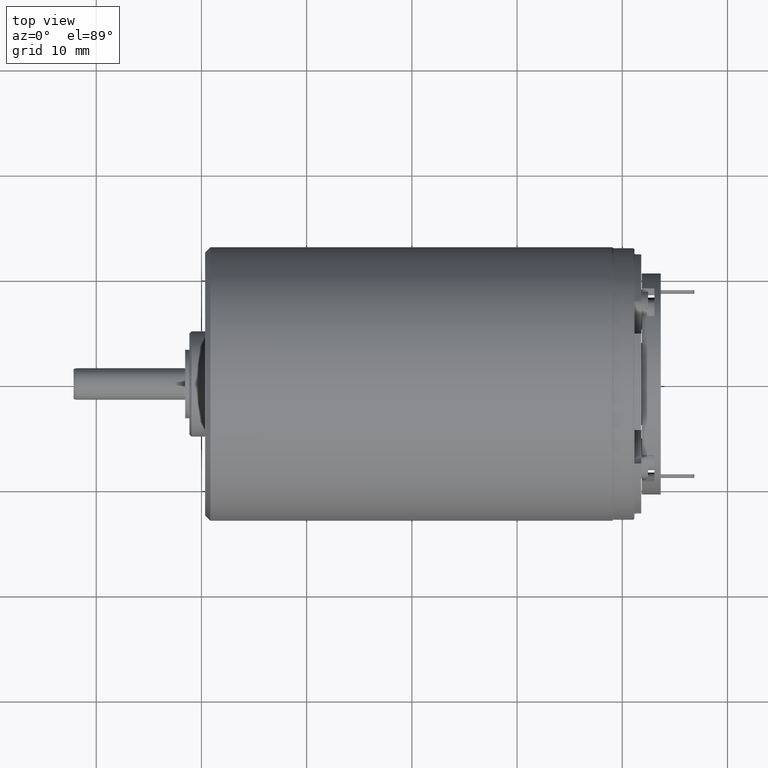
[diagram: clean part render]
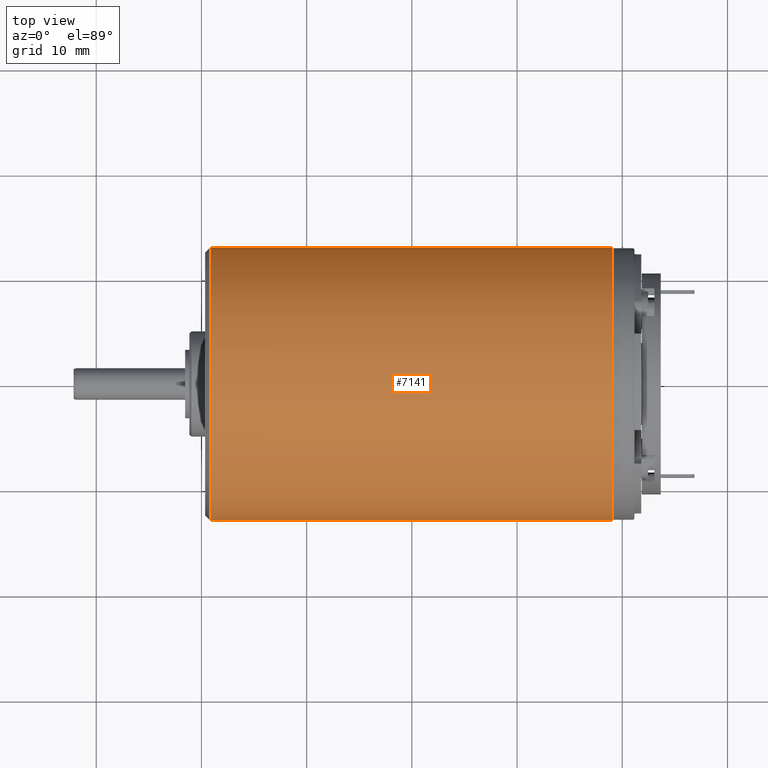
[diagram: same view with one face highlighted and labeled with its STEP entity id]
A machine part, top view. The second image highlights one B-rep face of the part: STEP entity #7141.
In plain terms, the highlighted cylindrical surface (partial cylindrical patch) has radius 13 mm, axis along (1, 0, 0).
Its self-contained STEP definition (entity closure, byte-faithful):
#2169=CARTESIAN_POINT('',(-1.914999761887E1,0.E0,0.E0));
#2170=DIRECTION('',(-1.E0,0.E0,0.E0));
#2171=DIRECTION('',(0.E0,-1.E0,0.E0));
#2172=AXIS2_PLACEMENT_3D('',#2169,#2170,#2171);
#2174=DIRECTION('',(1.E0,-4.586528150276E-8,-1.146006685513E-11));
#2175=VECTOR('',#2174,3.819999996626E1);
#2176=CARTESIAN_POINT('',(-1.914999996626E1,1.300000175205E1,
7.675372883947E-10));
#2177=LINE('',#2176,#2175);
#2178=CARTESIAN_POINT('',(1.905E1,0.E0,0.E0));
#2179=DIRECTION('',(1.E0,0.E0,0.E0));
#2180=DIRECTION('',(0.E0,1.E0,1.014658242911E-10));
#2181=AXIS2_PLACEMENT_3D('',#2178,#2179,#2180);
#2183=DIRECTION('',(-1.E0,-4.586528136325E-8,-2.009262342875E-11));
#2184=VECTOR('',#2183,3.819999996626E1);
#2185=CARTESIAN_POINT('',(1.905E1,-1.3E1,0.E0));
#2186=LINE('',#2185,#2184);
#3588=CARTESIAN_POINT('',(1.905E1,1.3E1,3.297627349154E-10));
#3589=VERTEX_POINT('',#3588);
#3590=CARTESIAN_POINT('',(1.905E1,-1.3E1,0.E0));
#3591=VERTEX_POINT('',#3590);
#3593=CARTESIAN_POINT('',(-1.915000171831E1,1.300000409944E1,0.E0));
#3595=VERTEX_POINT('',#3593);
#3596=CARTESIAN_POINT('',(-1.915000171831E1,-1.300000409944E1,0.E0));
#3597=VERTEX_POINT('',#3596);
#7130=CARTESIAN_POINT('',(-1.991400896407E1,0.E0,0.E0));
#7131=DIRECTION('',(1.E0,0.E0,0.E0));
#7132=DIRECTION('',(0.E0,-1.E0,0.E0));
#7133=AXIS2_PLACEMENT_3D('',#7130,#7131,#7132);
#7134=CYLINDRICAL_SURFACE('',#7133,1.3E1);
#7135=ORIENTED_EDGE('',*,*,#7124,.T.);
#7136=ORIENTED_EDGE('',*,*,#7028,.T.);
#7137=ORIENTED_EDGE('',*,*,#6998,.T.);
#7138=ORIENTED_EDGE('',*,*,#7025,.T.);
#7139=EDGE_LOOP('',(#7135,#7136,#7137,#7138));
#7140=FACE_OUTER_BOUND('',#7139,.F.);
#7141=ADVANCED_FACE('',(#7140),#7134,.T.);
#2173=CIRCLE('',#2172,1.3E1);
#2182=CIRCLE('',#2181,1.3E1);
#6998=EDGE_CURVE('',#3589,#3591,#2182,.T.);
#7025=EDGE_CURVE('',#3591,#3597,#2186,.T.);
#7028=EDGE_CURVE('',#3595,#3589,#2177,.T.);
#7124=EDGE_CURVE('',#3597,#3595,#2173,.T.);